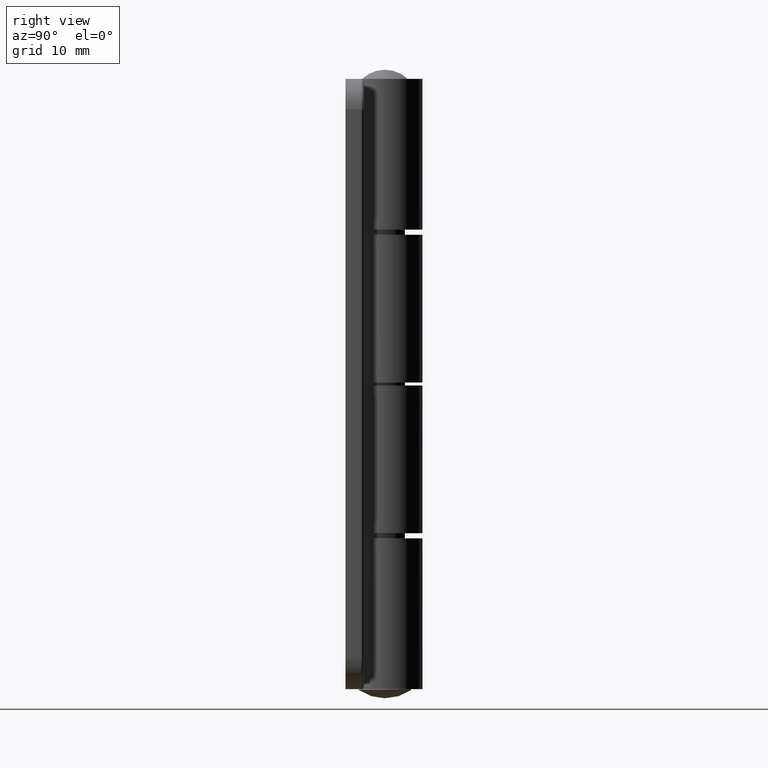
[diagram: clean part render]
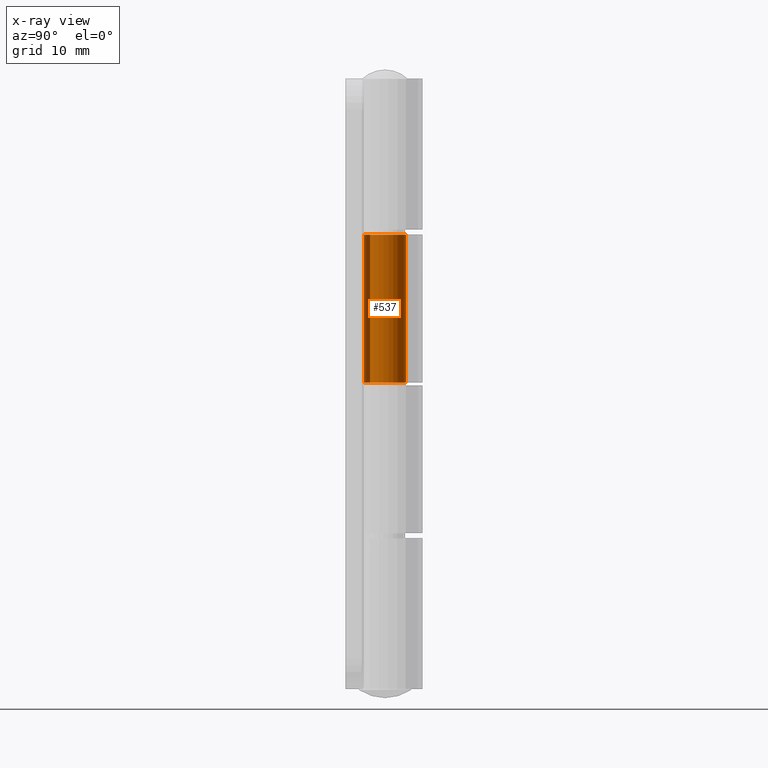
[diagram: x-ray — body ghosted, one internal face saturated and labeled with its STEP entity id]
A machine part, right view, then the same camera in x-ray: the body is ghosted and one INTERNAL B-rep face — a face not visible from any outside direction — is saturated and labeled: STEP entity #537.
In plain terms, the highlighted cylindrical surface (edge-blend (fillet) strip) has radius 3.45 mm, axis along (0, 0, 1).
Its self-contained STEP definition (entity closure, byte-faithful):
#89=LINE('',#931,#130);
#91=LINE('',#935,#132);
#130=VECTOR('',#750,24.2);
#132=VECTOR('',#756,24.2);
#143=CYLINDRICAL_SURFACE('',#597,3.45);
#170=FACE_OUTER_BOUND('',#202,.T.);
#202=EDGE_LOOP('',(#494,#495,#496,#497));
#229=CIRCLE('',#576,3.45);
#234=CIRCLE('',#582,3.45);
#268=VERTEX_POINT('',#873);
#269=VERTEX_POINT('',#875);
#274=VERTEX_POINT('',#886);
#279=VERTEX_POINT('',#896);
#328=EDGE_CURVE('',#269,#268,#229,.T.);
#339=EDGE_CURVE('',#274,#279,#234,.T.);
#356=EDGE_CURVE('',#274,#268,#89,.T.);
#358=EDGE_CURVE('',#279,#269,#91,.T.);
#494=ORIENTED_EDGE('',*,*,#328,.T.);
#495=ORIENTED_EDGE('',*,*,#356,.F.);
#496=ORIENTED_EDGE('',*,*,#339,.T.);
#497=ORIENTED_EDGE('',*,*,#358,.T.);
#537=ADVANCED_FACE('',(#170),#143,.F.);
#576=AXIS2_PLACEMENT_3D('',#876,#693,#694);
#582=AXIS2_PLACEMENT_3D('',#898,#711,#712);
#597=AXIS2_PLACEMENT_3D('',#936,#757,#758);
#693=DIRECTION('center_axis',(0.,0.,-1.));
#694=DIRECTION('ref_axis',(2.69738328555529E-17,1.,0.));
#711=DIRECTION('center_axis',(0.,0.,1.));
#712=DIRECTION('ref_axis',(2.69738328555529E-17,1.,0.));
#750=DIRECTION('',(0.,0.,-1.));
#756=DIRECTION('',(0.,0.,-1.));
#757=DIRECTION('center_axis',(0.,0.,-1.));
#758=DIRECTION('ref_axis',(2.69738328555529E-17,1.,0.));
#873=CARTESIAN_POINT('',(-4.30859436909641E-18,3.,-74.45));
#875=CARTESIAN_POINT('',(-2.42899156029822,4.,-74.45));
#876=CARTESIAN_POINT('Origin',(1.46675721073271E-15,6.45,-74.45));
#886=CARTESIAN_POINT('',(-4.30859436909641E-18,3.,-50.25));
#896=CARTESIAN_POINT('',(-2.42899156029822,4.,-50.25));
#898=CARTESIAN_POINT('Origin',(1.46675721073271E-15,6.45,-50.25));
#931=CARTESIAN_POINT('',(-4.30859436909641E-18,3.,0.));
#935=CARTESIAN_POINT('',(-2.42899156029822,4.,0.));
#936=CARTESIAN_POINT('Origin',(1.46675721073271E-15,6.45,0.));